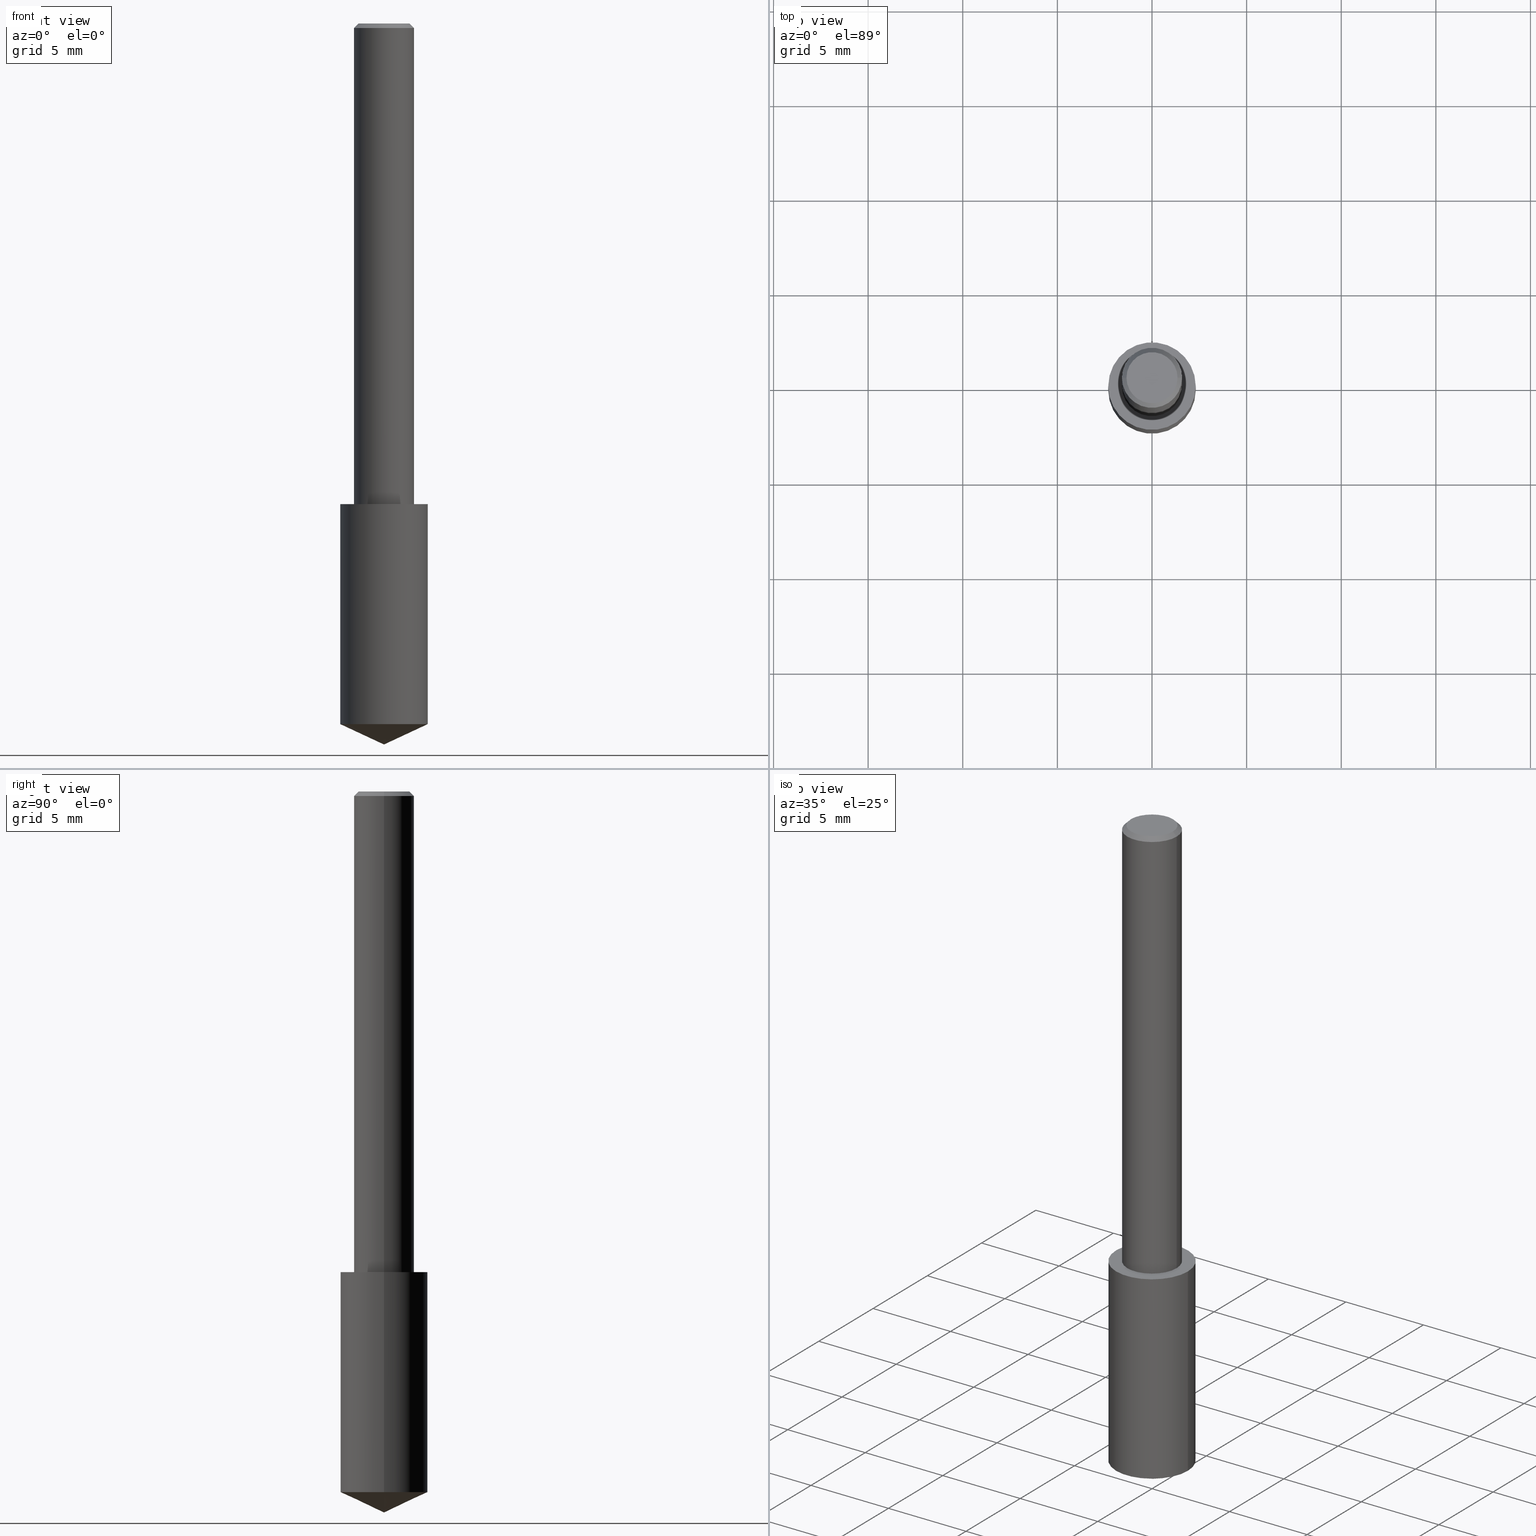
[diagram: canonical four-view strip — front | top / right | iso, engineering-drawing reading convention]
A machine part, canonical four-view strip (front | top / right | iso — engineering-drawing reading convention). The complete STEP part file that produces these views, byte-faithful:
ISO-10303-21;
HEADER;
FILE_DESCRIPTION (( 'STEP AP203' ),
    '1' );
FILE_NAME ('06117.STEP',
    '2024-04-30T18:29:53',
    ( '' ),
    ( '' ),
    'SwSTEP 2.0',
    'SolidWorks 2023',
    '' );
FILE_SCHEMA (( 'CONFIG_CONTROL_DESIGN' ));
ENDSEC;

DATA;
#1 = CARTESIAN_POINT ( 'NONE',  ( 0.06250000000000000000, -4.691678049070464390E-16, -0.009375000000000067307 ) ) ;
#2 = SECURITY_CLASSIFICATION ( '', '', #114 ) ;
#3 = DIRECTION ( 'NONE',  ( 1.000000000000000000, -6.982962677686266711E-15, 4.876176775795935793E-29 ) ) ;
#4 = DIRECTION ( 'NONE',  ( -2.445468806185136877E-29, 3.491481338843145188E-15, 1.000000000000000000 ) ) ;
#5 = VERTEX_POINT ( 'NONE', #217 ) ;
#6 = AXIS2_PLACEMENT_3D ( 'NONE', #159, #29, #80 ) ;
#7 = CIRCLE ( 'NONE', #179, 0.05312499999999999861 ) ;
#8 = DIRECTION ( 'NONE',  ( 1.000000000000000000, -6.982962677686266711E-15, 4.876176628004948512E-29 ) ) ;
#9 = ORIENTED_EDGE ( 'NONE', *, *, #325, .T. ) ;
#10 = DIRECTION ( 'NONE',  ( 2.445468806185136597E-29, -3.491481338843145583E-15, -1.000000000000000000 ) ) ;
#11 = EDGE_LOOP ( 'NONE', ( #69, #255 ) ) ;
#12 = EDGE_CURVE ( 'NONE', #280, #284, #171, .T. ) ;
#13 = DIRECTION ( 'NONE',  ( -1.000000000000000000, 6.982962677686265922E-15, -4.876176775795935793E-29 ) ) ;
#14 = EDGE_LOOP ( 'NONE', ( #250, #298, #249, #38 ) ) ;
#15 = APPROVAL ( #113, 'UNSPECIFIED' ) ;
#16 = AXIS2_PLACEMENT_3D ( 'NONE', #46, #10, #229 ) ;
#17 = LINE ( 'NONE', #300, #148 ) ;
#18 = MANIFOLD_SOLID_BREP ( 'Body-Move/Copy2[2]', #294 ) ;
#19 = CARTESIAN_POINT ( 'NONE',  ( -0.09099999999999999756, -2.844887449301455417E-15, -1.000000000000000222 ) ) ;
#20 = COORDINATED_UNIVERSAL_TIME_OFFSET ( 5, 0, .BEHIND. ) ;
#21 = MANIFOLD_SOLID_BREP ( 'Body-Move/Copy2[1]', #177 ) ;
#22 = DIRECTION ( 'NONE',  ( 1.000000000000000000, -6.982962677686266711E-15, 0.000000000000000000 ) ) ;
#23 = CARTESIAN_POINT ( 'NONE',  ( 0.000000000000000000, 0.000000000000000000, 0.000000000000000000 ) ) ;
#24 = EDGE_CURVE ( 'NONE', #199, #301, #211, .T. ) ;
#25 = CC_DESIGN_DATE_AND_TIME_ASSIGNMENT ( #234, #134, ( #339 ) ) ;
#26 = VECTOR ( 'NONE', #50, 39.37007874015748143 ) ;
#27 = CARTESIAN_POINT ( 'NONE',  ( -0.06250000000000006939, 4.440892098500631092E-16, -3.074334431409319267E-30 ) ) ;
#28 = EDGE_CURVE ( 'NONE', #97, #199, #161, .T. ) ;
#29 = DIRECTION ( 'NONE',  ( -2.445468806185136597E-29, 3.491481338843145583E-15, 1.000000000000000000 ) ) ;
#30 =( NAMED_UNIT ( * ) SI_UNIT ( $, .STERADIAN. ) SOLID_ANGLE_UNIT ( ) );
#31 = DIRECTION ( 'NONE',  ( 1.000000000000000000, -6.982962677686264344E-15, 0.000000000000000000 ) ) ;
#32 = CC_DESIGN_DATE_AND_TIME_ASSIGNMENT ( #52, #190, ( #2 ) ) ;
#33 = EDGE_CURVE ( 'NONE', #5, #96, #332, .T. ) ;
#34 = VECTOR ( 'NONE', #132, 39.37007874015748143 ) ;
#35 = PERSON_AND_ORGANIZATION ( #127, #163 ) ;
#36 = DESIGN_CONTEXT ( 'detailed design', #168, 'design' ) ;
#37 = LINE ( 'NONE', #72, #218 ) ;
#38 = ORIENTED_EDGE ( 'NONE', *, *, #28, .F. ) ;
#39 = DIRECTION ( 'NONE',  ( 1.000000000000000000, -6.982962677686266711E-15, 4.876176775795935793E-29 ) ) ;
#40 = ORIENTED_EDGE ( 'NONE', *, *, #24, .T. ) ;
#41 = AXIS2_PLACEMENT_3D ( 'NONE', #140, #240, #334 ) ;
#42 = AXIS2_PLACEMENT_3D ( 'NONE', #162, #59, #31 ) ;
#43 = CARTESIAN_POINT ( 'NONE',  ( 0.000000000000000000, 0.000000000000000000, 0.000000000000000000 ) ) ;
#44 = ORIENTED_EDGE ( 'NONE', *, *, #295, .F. ) ;
#45 = CARTESIAN_POINT ( 'NONE',  ( 0.09099999999999999756, -4.126930942512596153E-15, -1.000000000000000222 ) ) ;
#46 = CARTESIAN_POINT ( 'NONE',  ( 2.292627005798582375E-31, -3.273263755165472650E-17, -0.009375000000000067307 ) ) ;
#47 = ORIENTED_EDGE ( 'NONE', *, *, #196, .F. ) ;
#48 = FACE_OUTER_BOUND ( 'NONE', #125, .T. ) ;
#49 = CIRCLE ( 'NONE', #42, 0.06250000000000012490 ) ;
#50 = DIRECTION ( 'NONE',  ( 0.9063077870366508249, -4.853149677051392201E-15, 0.4226182617406975539 ) ) ;
#51 = DIRECTION ( 'NONE',  ( -2.445468806185136597E-29, 3.491481338843145583E-15, 1.000000000000000000 ) ) ;
#52 = DATE_AND_TIME ( #309, #144 ) ;
#53 = PERSON_AND_ORGANIZATION_ROLE ( 'design_owner' ) ;
#54 = EDGE_LOOP ( 'NONE', ( #323, #155, #205, #44 ) ) ;
#55 = CARTESIAN_POINT ( 'NONE',  ( 3.668203209277704895E-29, -5.237222008264718177E-15, -1.500000000000000222 ) ) ;
#56 = AXIS2_PLACEMENT_3D ( 'NONE', #285, #260, #84 ) ;
#57 = PERSON_AND_ORGANIZATION ( #127, #163 ) ;
#58 = APPROVAL_PERSON_ORGANIZATION ( #165, #115, #329 ) ;
#59 = DIRECTION ( 'NONE',  ( -2.445468806185136597E-29, 3.491481338843145583E-15, 1.000000000000000000 ) ) ;
#60 = EDGE_CURVE ( 'NONE', #284, #199, #83, .T. ) ;
#61 = PRODUCT_DEFINITION_SHAPE ( 'NONE', 'NONE',  #339 ) ;
#62 = ADVANCED_FACE ( 'NONE', ( #237 ), #337, .T. ) ;
#63 = EDGE_CURVE ( 'NONE', #96, #5, #287, .T. ) ;
#64 = EDGE_CURVE ( 'NONE', #96, #103, #37, .T. ) ;
#65 = VERTEX_POINT ( 'NONE', #319 ) ;
#66 = DIRECTION ( 'NONE',  ( 1.000000000000000000, -6.982962677686269077E-15, 0.000000000000000000 ) ) ;
#67 = DIRECTION ( 'NONE',  ( -2.445468806185136597E-29, 3.491481338843145583E-15, 1.000000000000000000 ) ) ;
#68 = ORIENTED_EDGE ( 'NONE', *, *, #12, .F. ) ;
#69 = ORIENTED_EDGE ( 'NONE', *, *, #74, .T. ) ;
#70 = VECTOR ( 'NONE', #293, 39.37007874015748143 ) ;
#71 =( GEOMETRIC_REPRESENTATION_CONTEXT ( 3 ) GLOBAL_UNCERTAINTY_ASSIGNED_CONTEXT ( ( #238 ) ) GLOBAL_UNIT_ASSIGNED_CONTEXT ( ( #192, #310, #30 ) ) REPRESENTATION_CONTEXT ( 'NONE', 'WORKASPACE' ) );
#72 = CARTESIAN_POINT ( 'NONE',  ( 0.09099999999999999756, -4.126930942512596153E-15, -1.000000000000000222 ) ) ;
#73 = ORIENTED_EDGE ( 'NONE', *, *, #24, .F. ) ;
#74 = EDGE_CURVE ( 'NONE', #103, #228, #116, .T. ) ;
#75 = DIRECTION ( 'NONE',  ( 1.000000000000000000, -6.982962677686269077E-15, 0.000000000000000000 ) ) ;
#76 = EDGE_LOOP ( 'NONE', ( #151, #147, #230 ) ) ;
#77 = CONICAL_SURFACE ( 'NONE', #56, 0.06250000000000000000, 0.7853981633974447263 ) ;
#78 = PERSON_AND_ORGANIZATION_ROLE ( 'classification_officer' ) ;
#79 = DIRECTION ( 'NONE',  ( -2.438088387897960049E-29, 3.491481338843145188E-15, 1.000000000000000000 ) ) ;
#80 = DIRECTION ( 'NONE',  ( 1.000000000000000000, -6.982962677686266711E-15, 0.000000000000000000 ) ) ;
#81 = PERSON_AND_ORGANIZATION_ROLE ( 'design_supplier' ) ;
#82 = DIRECTION ( 'NONE',  ( 1.000000000000000000, 0.000000000000000000, 0.000000000000000000 ) ) ;
#83 = LINE ( 'NONE', #27, #70 ) ;
#84 = DIRECTION ( 'NONE',  ( -1.000000000000000000, 6.982962677686266711E-15, 0.000000000000000000 ) ) ;
#85 = ADVANCED_FACE ( 'NONE', ( #331 ), #109, .F. ) ;
#86 = LENGTH_MEASURE_WITH_UNIT ( LENGTH_MEASURE( 0.02539999999999999897 ), #235 );
#87 = PRODUCT ( '06117', '06117', '', ( #188 ) ) ;
#88 = DATE_AND_TIME ( #184, #94 ) ;
#89 = SHAPE_DEFINITION_REPRESENTATION ( #61, #261 ) ;
#90 = LOCAL_TIME ( 14, 29, 53.00000000000000000, #20 ) ;
#91 = CALENDAR_DATE ( 2024, 30, 4 ) ;
#92 = CC_DESIGN_PERSON_AND_ORGANIZATION_ASSIGNMENT ( #220, #78, ( #2 ) ) ;
#93 = ORIENTED_EDGE ( 'NONE', *, *, #28, .T. ) ;
#94 = LOCAL_TIME ( 14, 29, 53.00000000000000000, #138 ) ;
#95 = CARTESIAN_POINT ( 'NONE',  ( 2.445468806185136877E-29, -3.491481338843145977E-15, -1.000000000000000222 ) ) ;
#96 = VERTEX_POINT ( 'NONE', #110 ) ;
#97 = VERTEX_POINT ( 'NONE', #259 ) ;
#98 = DIRECTION ( 'NONE',  ( -2.445468806185136597E-29, 3.491481338843145583E-15, 1.000000000000000000 ) ) ;
#99 = ORIENTED_EDGE ( 'NONE', *, *, #74, .F. ) ;
#100 = CC_DESIGN_APPROVAL ( #115, ( #2 ) ) ;
#101 = CARTESIAN_POINT ( 'NONE',  ( 3.668203209277704895E-29, -5.237222008264718177E-15, -1.500000000000000222 ) ) ;
#102 = ADVANCED_FACE ( 'NONE', ( #48 ), #77, .T. ) ;
#103 = VERTEX_POINT ( 'NONE', #45 ) ;
#104 = FACE_OUTER_BOUND ( 'NONE', #178, .T. ) ;
#105 = DIRECTION ( 'NONE',  ( -2.445468806185136877E-29, 3.491481338843145188E-15, 1.000000000000000000 ) ) ;
#106 = DIRECTION ( 'NONE',  ( 0.7071067811865450192, -7.319954787623246579E-15, -0.7071067811865500152 ) ) ;
#107 = CARTESIAN_POINT ( 'NONE',  ( 2.445468806185137438E-29, -3.491481338843146371E-15, -1.000000000000000222 ) ) ;
#108 = AXIS2_PLACEMENT_3D ( 'NONE', #208, #266, #290 ) ;
#109 = PLANE ( 'NONE',  #299 ) ;
#110 = CARTESIAN_POINT ( 'NONE',  ( 0.09099999999999999756, -5.724514103652857950E-15, -1.457566003107895414 ) ) ;
#111 = EDGE_CURVE ( 'NONE', #65, #301, #212, .T. ) ;
#112 = CALENDAR_DATE ( 2024, 30, 4 ) ;
#113 = APPROVAL_STATUS ( 'not_yet_approved' ) ;
#114 = SECURITY_CLASSIFICATION_LEVEL ( 'unclassified' ) ;
#115 = APPROVAL ( #267, 'UNSPECIFIED' ) ;
#116 = CIRCLE ( 'NONE', #142, 0.09099999999999999756 ) ;
#117 = CC_DESIGN_PERSON_AND_ORGANIZATION_ASSIGNMENT ( #35, #137, ( #339 ) ) ;
#118 = CARTESIAN_POINT ( 'NONE',  ( 3.564432193556306324E-29, -5.089064499983406985E-15, -1.457566003107895414 ) ) ;
#119 = ORIENTED_EDGE ( 'NONE', *, *, #295, .T. ) ;
#120 = CARTESIAN_POINT ( 'NONE',  ( -7.487088864773345706E-50, 1.068957861474247695E-35, 3.061616997868395197E-21 ) ) ;
#121 = ORIENTED_EDGE ( 'NONE', *, *, #316, .T. ) ;
#122 = CC_DESIGN_APPROVAL ( #242, ( #225 ) ) ;
#123 = DATE_AND_TIME ( #91, #270 ) ;
#124 = CARTESIAN_POINT ( 'NONE',  ( -7.487088864773345706E-50, 1.068957861474247695E-35, 3.061616997868395197E-21 ) ) ;
#125 = EDGE_LOOP ( 'NONE', ( #207, #283, #93, #40 ) ) ;
#126 = EDGE_CURVE ( 'NONE', #145, #5, #131, .T. ) ;
#127 = PERSON ( 'UNSPECIFIED', 'UNSPECIFIED', 'UNSPECIFIED', ('UNSPECIFIED'), ('UNSPECIFIED'), ('UNSPECIFIED') ) ;
#128 = CARTESIAN_POINT ( 'NONE',  ( -0.06250000000000000000, -1.318017778347336672E-15, -0.009375000000000067307 ) ) ;
#129 = EDGE_LOOP ( 'NONE', ( #247, #201, #99, #286 ) ) ;
#130 = AXIS2_PLACEMENT_3D ( 'NONE', #248, #150, #75 ) ;
#131 = LINE ( 'NONE', #327, #324 ) ;
#132 = DIRECTION ( 'NONE',  ( -2.445468806185136877E-29, 3.491481338843145188E-15, 1.000000000000000000 ) ) ;
#133 = DIRECTION ( 'NONE',  ( -2.445468806185136597E-29, 3.491481338843145583E-15, 1.000000000000000000 ) ) ;
#134 = DATE_TIME_ROLE ( 'creation_date' ) ;
#135 = DIRECTION ( 'NONE',  ( 0.000000000000000000, 0.000000000000000000, 1.000000000000000000 ) ) ;
#136 = CONICAL_SURFACE ( 'NONE', #206, 84.42940631927440620, 1.134464013796316229 ) ;
#137 = PERSON_AND_ORGANIZATION_ROLE ( 'creator' ) ;
#138 = COORDINATED_UNIVERSAL_TIME_OFFSET ( 5, 0, .BEHIND. ) ;
#139 = PERSON_AND_ORGANIZATION ( #127, #163 ) ;
#140 = CARTESIAN_POINT ( 'NONE',  ( 3.564432193556306324E-29, -5.089064499983406985E-15, -1.457566003107895414 ) ) ;
#141 = PERSON_AND_ORGANIZATION_ROLE ( 'creator' ) ;
#142 = AXIS2_PLACEMENT_3D ( 'NONE', #95, #278, #66 ) ;
#143 = EDGE_CURVE ( 'NONE', #301, #199, #315, .T. ) ;
#144 = LOCAL_TIME ( 14, 29, 53.00000000000000000, #187 ) ;
#145 = VERTEX_POINT ( 'NONE', #55 ) ;
#146 = CYLINDRICAL_SURFACE ( 'NONE', #338, 0.09099999999999999756 ) ;
#147 = ORIENTED_EDGE ( 'NONE', *, *, #126, .T. ) ;
#148 = VECTOR ( 'NONE', #105, 39.37007874015748143 ) ;
#149 = ORIENTED_EDGE ( 'NONE', *, *, #126, .F. ) ;
#150 = DIRECTION ( 'NONE',  ( -2.445468806185136597E-29, 3.491481338843145583E-15, 1.000000000000000000 ) ) ;
#151 = ORIENTED_EDGE ( 'NONE', *, *, #241, .F. ) ;
#152 = ADVANCED_FACE ( 'NONE', ( #104 ), #288, .T. ) ;
#153 = CARTESIAN_POINT ( 'NONE',  ( 0.06250000000000000000, -4.615137624123754923E-16, -0.009375000000000067307 ) ) ;
#154 = DIRECTION ( 'NONE',  ( -2.445468806185136597E-29, 3.491481338843145583E-15, 1.000000000000000000 ) ) ;
#155 = ORIENTED_EDGE ( 'NONE', *, *, #60, .T. ) ;
#156 = PRODUCT_RELATED_PRODUCT_CATEGORY ( 'detail', '', ( #87 ) ) ;
#157 = CC_DESIGN_PERSON_AND_ORGANIZATION_ASSIGNMENT ( #258, #81, ( #225 ) ) ;
#158 = AXIS2_PLACEMENT_3D ( 'NONE', #304, #79, #166 ) ;
#159 = CARTESIAN_POINT ( 'NONE',  ( -9.261009624683002666E-28, 1.322226732217803884E-13, 37.87007874015748143 ) ) ;
#160 = APPROVAL_STATUS ( 'not_yet_approved' ) ;
#161 = LINE ( 'NONE', #236, #312 ) ;
#162 = CARTESIAN_POINT ( 'NONE',  ( 2.445468806185137438E-29, -3.491481338843146371E-15, -1.000000000000000222 ) ) ;
#163 = ORGANIZATION ( 'UNSPECIFIED', 'UNSPECIFIED', '' ) ;
#164 = CYLINDRICAL_SURFACE ( 'NONE', #108, 0.09099999999999999756 ) ;
#165 = PERSON_AND_ORGANIZATION ( #127, #163 ) ;
#166 = DIRECTION ( 'NONE',  ( 1.000000000000000000, -6.982962677686265922E-15, 4.876176775795935793E-29 ) ) ;
#167 = CALENDAR_DATE ( 2024, 30, 4 ) ;
#168 = APPLICATION_CONTEXT ( 'configuration controlled 3d designs of mechanical parts and assemblies' ) ;
#169 = CIRCLE ( 'NONE', #222, 0.05312499999999999861 ) ;
#170 = APPROVAL_DATE_TIME ( #88, #115 ) ;
#171 = CIRCLE ( 'NONE', #193, 0.06250000000000012490 ) ;
#172 = CC_DESIGN_SECURITY_CLASSIFICATION ( #2, ( #225 ) ) ;
#173 = DIRECTION ( 'NONE',  ( -2.445468806185136597E-29, 3.491481338843145583E-15, 1.000000000000000000 ) ) ;
#174 = EDGE_LOOP ( 'NONE', ( #47, #183, #321, #251 ) ) ;
#175 = FACE_OUTER_BOUND ( 'NONE', #174, .T. ) ;
#176 = ORIENTED_EDGE ( 'NONE', *, *, #325, .F. ) ;
#177 = CLOSED_SHELL ( 'NONE', ( #195, #265, #152, #322, #85 ) ) ;
#178 = EDGE_LOOP ( 'NONE', ( #149, #303, #202 ) ) ;
#179 = AXIS2_PLACEMENT_3D ( 'NONE', #124, #154, #254 ) ;
#180 = EDGE_LOOP ( 'NONE', ( #277, #9, #119, #73 ) ) ;
#181 = DIRECTION ( 'NONE',  ( 2.438088387897960049E-29, -3.491481338843145188E-15, -1.000000000000000000 ) ) ;
#182 = CARTESIAN_POINT ( 'NONE',  ( -9.261009624683002666E-28, 1.322226732217803884E-13, 37.87007874015748143 ) ) ;
#183 = ORIENTED_EDGE ( 'NONE', *, *, #33, .T. ) ;
#184 = CALENDAR_DATE ( 2024, 30, 4 ) ;
#185 = APPROVAL_DATE_TIME ( #123, #15 ) ;
#186 = FACE_OUTER_BOUND ( 'NONE', #129, .T. ) ;
#187 = COORDINATED_UNIVERSAL_TIME_OFFSET ( 5, 0, .BEHIND. ) ;
#188 = MECHANICAL_CONTEXT ( 'NONE', #317, 'mechanical' ) ;
#189 = DIRECTION ( 'NONE',  ( -0.9063077870366508249, 7.915267918739014631E-15, 0.4226182617406975539 ) ) ;
#190 = DATE_TIME_ROLE ( 'classification_date' ) ;
#191 = FACE_OUTER_BOUND ( 'NONE', #232, .T. ) ;
#192 =( CONVERSION_BASED_UNIT ( 'INCH', #86 ) LENGTH_UNIT ( ) NAMED_UNIT ( #313 ) );
#193 = AXIS2_PLACEMENT_3D ( 'NONE', #214, #51, #307 ) ;
#194 = AXIS2_PLACEMENT_3D ( 'NONE', #43, #204, #39 ) ;
#195 = ADVANCED_FACE ( 'NONE', ( #186 ), #164, .T. ) ;
#196 = EDGE_CURVE ( 'NONE', #5, #228, #257, .T. ) ;
#197 = ADVANCED_FACE ( 'NONE', ( #233 ), #289, .F. ) ;
#198 = APPROVAL_PERSON_ORGANIZATION ( #336, #15, #223 ) ;
#199 = VERTEX_POINT ( 'NONE', #128 ) ;
#200 = CARTESIAN_POINT ( 'NONE',  ( 0.06250000000000012490, -3.927916506198539224E-15, -1.000000000000000222 ) ) ;
#201 = ORIENTED_EDGE ( 'NONE', *, *, #196, .T. ) ;
#202 = ORIENTED_EDGE ( 'NONE', *, *, #33, .F. ) ;
#203 = DIRECTION ( 'NONE',  ( -2.445468806185136597E-29, 3.491481338843145583E-15, 1.000000000000000000 ) ) ;
#204 = DIRECTION ( 'NONE',  ( -2.445468806185136597E-29, 3.491481338843145583E-15, 1.000000000000000000 ) ) ;
#205 = ORIENTED_EDGE ( 'NONE', *, *, #143, .F. ) ;
#206 = AXIS2_PLACEMENT_3D ( 'NONE', #182, #98, #282 ) ;
#207 = ORIENTED_EDGE ( 'NONE', *, *, #111, .F. ) ;
#208 = CARTESIAN_POINT ( 'NONE',  ( 2.445468806185137438E-29, -3.491481338843146371E-15, -1.000000000000000222 ) ) ;
#209 = APPROVAL_DATE_TIME ( #268, #242 ) ;
#210 = DIRECTION ( 'NONE',  ( 1.000000000000000000, -6.982962677686266711E-15, 0.000000000000000000 ) ) ;
#211 = CIRCLE ( 'NONE', #224, 0.06250000000000000000 ) ;
#212 = LINE ( 'NONE', #153, #269 ) ;
#213 = APPLICATION_PROTOCOL_DEFINITION ( 'international standard', 'config_control_design', 1994, #317 ) ;
#214 = CARTESIAN_POINT ( 'NONE',  ( 2.445468806185137438E-29, -3.491481338843146371E-15, -1.000000000000000222 ) ) ;
#215 = CARTESIAN_POINT ( 'NONE',  ( -3.743544432386672853E-50, 5.344789307371238476E-36, 1.530808498934197599E-21 ) ) ;
#216 = APPROVAL_ROLE ( '' ) ;
#217 = CARTESIAN_POINT ( 'NONE',  ( -0.09099999999999999756, -4.442470610441716820E-15, -1.457566003107895414 ) ) ;
#218 = VECTOR ( 'NONE', #4, 39.37007874015748143 ) ;
#219 = CC_DESIGN_APPROVAL ( #15, ( #339 ) ) ;
#220 = PERSON_AND_ORGANIZATION ( #127, #163 ) ;
#221 = DIRECTION ( 'NONE',  ( 1.000000000000000000, -6.982962677686263555E-15, 0.000000000000000000 ) ) ;
#222 = AXIS2_PLACEMENT_3D ( 'NONE', #120, #67, #8 ) ;
#223 = APPROVAL_ROLE ( '' ) ;
#224 = AXIS2_PLACEMENT_3D ( 'NONE', #335, #330, #210 ) ;
#225 = PRODUCT_DEFINITION_FORMATION_WITH_SPECIFIED_SOURCE ( 'ANY', '', #87, .NOT_KNOWN. ) ;
#226 = CARTESIAN_POINT ( 'NONE',  ( -0.09099999999999999756, -3.643679029871584738E-15, -1.000000000000000222 ) ) ;
#227 = ORIENTED_EDGE ( 'NONE', *, *, #272, .T. ) ;
#228 = VERTEX_POINT ( 'NONE', #226 ) ;
#229 = DIRECTION ( 'NONE',  ( -1.000000000000000000, 6.982962677686266711E-15, 0.000000000000000000 ) ) ;
#230 = ORIENTED_EDGE ( 'NONE', *, *, #63, .F. ) ;
#231 = LINE ( 'NONE', #101, #26 ) ;
#232 = EDGE_LOOP ( 'NONE', ( #68, #176 ) ) ;
#233 = FACE_OUTER_BOUND ( 'NONE', #296, .T. ) ;
#234 = DATE_AND_TIME ( #112, #244 ) ;
#235 =( LENGTH_UNIT ( ) NAMED_UNIT ( * ) SI_UNIT ( $, .METRE. ) );
#236 = CARTESIAN_POINT ( 'NONE',  ( -0.06250000000000000000, 4.037025298037369491E-16, -0.009375000000000067307 ) ) ;
#237 = FACE_OUTER_BOUND ( 'NONE', #54, .T. ) ;
#238 = UNCERTAINTY_MEASURE_WITH_UNIT (LENGTH_MEASURE( 1.000000000000000082E-05 ), #192, 'distance_accuracy_value', 'NONE');
#239 = APPLICATION_PROTOCOL_DEFINITION ( 'international standard', 'config_control_design', 1994, #168 ) ;
#240 = DIRECTION ( 'NONE',  ( -2.445468806185136597E-29, 3.491481338843145583E-15, 1.000000000000000000 ) ) ;
#241 = EDGE_CURVE ( 'NONE', #145, #96, #231, .T. ) ;
#242 = APPROVAL ( #160, 'UNSPECIFIED' ) ;
#243 = CARTESIAN_POINT ( 'NONE',  ( -0.06250000000000012490, -1.318017778347335489E-15, -1.000000000000000222 ) ) ;
#244 = LOCAL_TIME ( 14, 29, 53.00000000000000000, #292 ) ;
#245 = ADVANCED_FACE ( 'NONE', ( #297 ), #333, .T. ) ;
#246 = CARTESIAN_POINT ( 'NONE',  ( 0.000000000000000000, 0.000000000000000000, 0.000000000000000000 ) ) ;
#247 = ORIENTED_EDGE ( 'NONE', *, *, #63, .T. ) ;
#248 = CARTESIAN_POINT ( 'NONE',  ( 2.445468806185136877E-29, -3.491481338843145977E-15, -1.000000000000000222 ) ) ;
#249 = ORIENTED_EDGE ( 'NONE', *, *, #143, .T. ) ;
#250 = ORIENTED_EDGE ( 'NONE', *, *, #316, .F. ) ;
#251 = ORIENTED_EDGE ( 'NONE', *, *, #271, .F. ) ;
#252 = CARTESIAN_POINT ( 'NONE',  ( 3.493622244694459703E-29, -1.990465957708935842E-15, -1.000000000000000222 ) ) ;
#253 = AXIS2_PLACEMENT_3D ( 'NONE', #246, #203, #3 ) ;
#254 = DIRECTION ( 'NONE',  ( 1.000000000000000000, -6.982962677686266711E-15, 4.876176628004948512E-29 ) ) ;
#255 = ORIENTED_EDGE ( 'NONE', *, *, #271, .T. ) ;
#256 = CIRCLE ( 'NONE', #130, 0.09099999999999999756 ) ;
#257 = LINE ( 'NONE', #19, #34 ) ;
#258 = PERSON_AND_ORGANIZATION ( #127, #163 ) ;
#259 = CARTESIAN_POINT ( 'NONE',  ( -0.05312499999999999861, 3.873362110279099094E-16, 3.061616995216862494E-21 ) ) ;
#260 = DIRECTION ( 'NONE',  ( 2.445468806185136597E-29, -3.491481338843145583E-15, -1.000000000000000000 ) ) ;
#261 = ADVANCED_BREP_SHAPE_REPRESENTATION ( '06117', ( #21, #18, #264 ), #71 ) ;
#262 = PLANE ( 'NONE',  #158 ) ;
#263 = AXIS2_PLACEMENT_3D ( 'NONE', #118, #173, #275 ) ;
#264 = AXIS2_PLACEMENT_3D ( 'NONE', #23, #135, #82 ) ;
#265 = ADVANCED_FACE ( 'NONE', ( #302 ), #136, .T. ) ;
#266 = DIRECTION ( 'NONE',  ( -2.445468806185136597E-29, 3.491481338843145583E-15, 1.000000000000000000 ) ) ;
#267 = APPROVAL_STATUS ( 'not_yet_approved' ) ;
#268 = DATE_AND_TIME ( #167, #90 ) ;
#269 = VECTOR ( 'NONE', #106, 39.37007874015748143 ) ;
#270 = LOCAL_TIME ( 14, 29, 53.00000000000000000, #314 ) ;
#271 = EDGE_CURVE ( 'NONE', #228, #103, #256, .T. ) ;
#272 = EDGE_CURVE ( 'NONE', #97, #65, #7, .T. ) ;
#273 = AXIS2_PLACEMENT_3D ( 'NONE', #215, #320, #13 ) ;
#274 = CC_DESIGN_PERSON_AND_ORGANIZATION_ASSIGNMENT ( #57, #141, ( #225 ) ) ;
#275 = DIRECTION ( 'NONE',  ( 1.000000000000000000, -6.982962677686269077E-15, 0.000000000000000000 ) ) ;
#276 = ADVANCED_FACE ( 'NONE', ( #279 ), #328, .T. ) ;
#277 = ORIENTED_EDGE ( 'NONE', *, *, #60, .F. ) ;
#278 = DIRECTION ( 'NONE',  ( -2.445468806185136597E-29, 3.491481338843145583E-15, 1.000000000000000000 ) ) ;
#279 = FACE_OUTER_BOUND ( 'NONE', #180, .T. ) ;
#280 = VERTEX_POINT ( 'NONE', #200 ) ;
#281 = AXIS2_PLACEMENT_3D ( 'NONE', #291, #305, #22 ) ;
#282 = DIRECTION ( 'NONE',  ( 1.000000000000000000, -6.982962677686266711E-15, 0.000000000000000000 ) ) ;
#283 = ORIENTED_EDGE ( 'NONE', *, *, #272, .F. ) ;
#284 = VERTEX_POINT ( 'NONE', #243 ) ;
#285 = CARTESIAN_POINT ( 'NONE',  ( 2.292627005798582375E-31, -3.273263755165472650E-17, -0.009375000000000067307 ) ) ;
#286 = ORIENTED_EDGE ( 'NONE', *, *, #64, .F. ) ;
#287 = CIRCLE ( 'NONE', #263, 0.09099999999999999756 ) ;
#288 = CONICAL_SURFACE ( 'NONE', #6, 84.42940631927440620, 1.134464013796316229 ) ;
#289 = PLANE ( 'NONE',  #273 ) ;
#290 = DIRECTION ( 'NONE',  ( 1.000000000000000000, -6.982962677686263555E-15, 0.000000000000000000 ) ) ;
#291 = CARTESIAN_POINT ( 'NONE',  ( 2.292627005798582375E-31, -3.273263755165472650E-17, -0.009375000000000067307 ) ) ;
#292 = COORDINATED_UNIVERSAL_TIME_OFFSET ( 5, 0, .BEHIND. ) ;
#293 = DIRECTION ( 'NONE',  ( -2.445468806185136877E-29, 3.491481338843145188E-15, 1.000000000000000000 ) ) ;
#294 = CLOSED_SHELL ( 'NONE', ( #245, #62, #340, #276, #102, #197 ) ) ;
#295 = EDGE_CURVE ( 'NONE', #280, #301, #17, .T. ) ;
#296 = EDGE_LOOP ( 'NONE', ( #227, #121 ) ) ;
#297 = FACE_OUTER_BOUND ( 'NONE', #14, .T. ) ;
#298 = ORIENTED_EDGE ( 'NONE', *, *, #111, .T. ) ;
#299 = AXIS2_PLACEMENT_3D ( 'NONE', #252, #181, #308 ) ;
#300 = CARTESIAN_POINT ( 'NONE',  ( 0.06250000000000006939, -4.364351673553921624E-16, 3.047610484872463374E-30 ) ) ;
#301 = VERTEX_POINT ( 'NONE', #1 ) ;
#302 = FACE_OUTER_BOUND ( 'NONE', #76, .T. ) ;
#303 = ORIENTED_EDGE ( 'NONE', *, *, #241, .T. ) ;
#304 = CARTESIAN_POINT ( 'NONE',  ( 2.445468806185137438E-29, -3.491481338843146371E-15, -1.000000000000000222 ) ) ;
#305 = DIRECTION ( 'NONE',  ( -2.445468806185136597E-29, 3.491481338843145583E-15, 1.000000000000000000 ) ) ;
#306 = PERSON_AND_ORGANIZATION ( #127, #163 ) ;
#307 = DIRECTION ( 'NONE',  ( 1.000000000000000000, -6.982962677686264344E-15, 0.000000000000000000 ) ) ;
#308 = DIRECTION ( 'NONE',  ( -1.000000000000000000, 6.982962677686265922E-15, -4.876176775795935793E-29 ) ) ;
#309 = CALENDAR_DATE ( 2024, 30, 4 ) ;
#310 =( NAMED_UNIT ( * ) PLANE_ANGLE_UNIT ( ) SI_UNIT ( $, .RADIAN. ) );
#311 = DIRECTION ( 'NONE',  ( -0.7071067811865450192, 2.468850131082230634E-15, -0.7071067811865500152 ) ) ;
#312 = VECTOR ( 'NONE', #311, 39.37007874015748143 ) ;
#313 = DIMENSIONAL_EXPONENTS ( 1.000000000000000000, 0.000000000000000000, 0.000000000000000000, 0.000000000000000000, 0.000000000000000000, 0.000000000000000000, 0.000000000000000000 ) ;
#314 = COORDINATED_UNIVERSAL_TIME_OFFSET ( 5, 0, .BEHIND. ) ;
#315 = CIRCLE ( 'NONE', #281, 0.06250000000000000000 ) ;
#316 = EDGE_CURVE ( 'NONE', #65, #97, #169, .T. ) ;
#317 = APPLICATION_CONTEXT ( 'configuration controlled 3d designs of mechanical parts and assemblies' ) ;
#318 = APPROVAL_PERSON_ORGANIZATION ( #306, #242, #216 ) ;
#319 = CARTESIAN_POINT ( 'NONE',  ( 0.05312499999999999861, -4.129888592719939842E-16, 3.061617000609493422E-21 ) ) ;
#320 = DIRECTION ( 'NONE',  ( 2.438088387897960049E-29, -3.491481338843145188E-15, -1.000000000000000000 ) ) ;
#321 = ORIENTED_EDGE ( 'NONE', *, *, #64, .T. ) ;
#322 = ADVANCED_FACE ( 'NONE', ( #175 ), #146, .T. ) ;
#323 = ORIENTED_EDGE ( 'NONE', *, *, #12, .T. ) ;
#324 = VECTOR ( 'NONE', #189, 39.37007874015748143 ) ;
#325 = EDGE_CURVE ( 'NONE', #284, #280, #49, .T. ) ;
#326 = CC_DESIGN_PERSON_AND_ORGANIZATION_ASSIGNMENT ( #139, #53, ( #87 ) ) ;
#327 = CARTESIAN_POINT ( 'NONE',  ( 3.668203209277704895E-29, -5.237222008264718177E-15, -1.500000000000000222 ) ) ;
#328 = CYLINDRICAL_SURFACE ( 'NONE', #194, 0.06250000000000006939 ) ;
#329 = APPROVAL_ROLE ( '' ) ;
#330 = DIRECTION ( 'NONE',  ( -2.445468806185136597E-29, 3.491481338843145583E-15, 1.000000000000000000 ) ) ;
#331 = FACE_OUTER_BOUND ( 'NONE', #11, .T. ) ;
#332 = CIRCLE ( 'NONE', #41, 0.09099999999999999756 ) ;
#333 = CONICAL_SURFACE ( 'NONE', #16, 0.06250000000000000000, 0.7853981633974447263 ) ;
#334 = DIRECTION ( 'NONE',  ( 1.000000000000000000, -6.982962677686269077E-15, 0.000000000000000000 ) ) ;
#335 = CARTESIAN_POINT ( 'NONE',  ( 2.292627005798582375E-31, -3.273263755165472650E-17, -0.009375000000000067307 ) ) ;
#336 = PERSON_AND_ORGANIZATION ( #127, #163 ) ;
#337 = CYLINDRICAL_SURFACE ( 'NONE', #253, 0.06250000000000006939 ) ;
#338 = AXIS2_PLACEMENT_3D ( 'NONE', #107, #133, #221 ) ;
#339 = PRODUCT_DEFINITION ( 'UNKNOWN', '', #225, #36 ) ;
#340 = ADVANCED_FACE ( 'NONE', ( #191 ), #262, .F. ) ;
ENDSEC;
END-ISO-10303-21;
